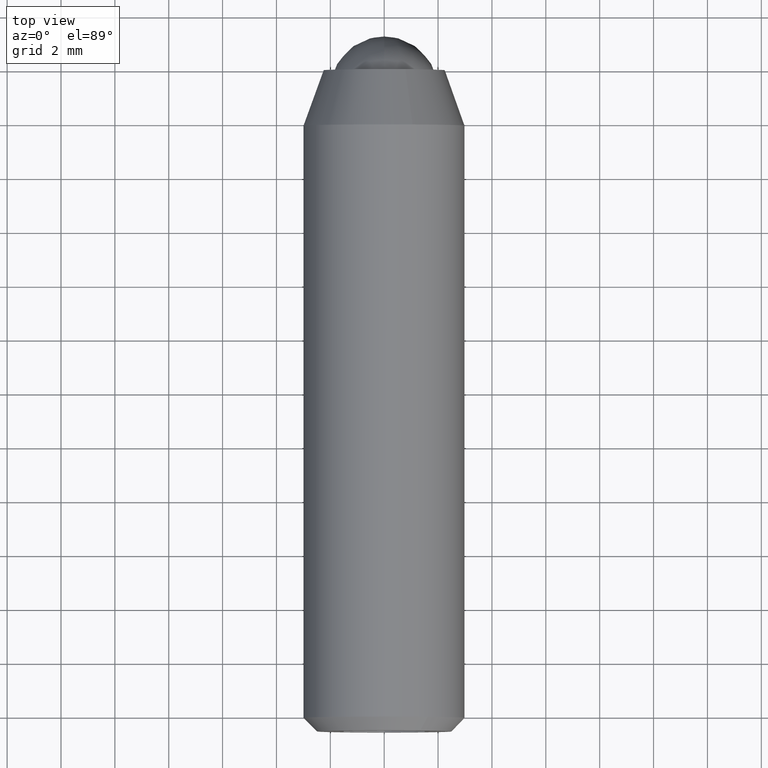
[diagram: clean part render]
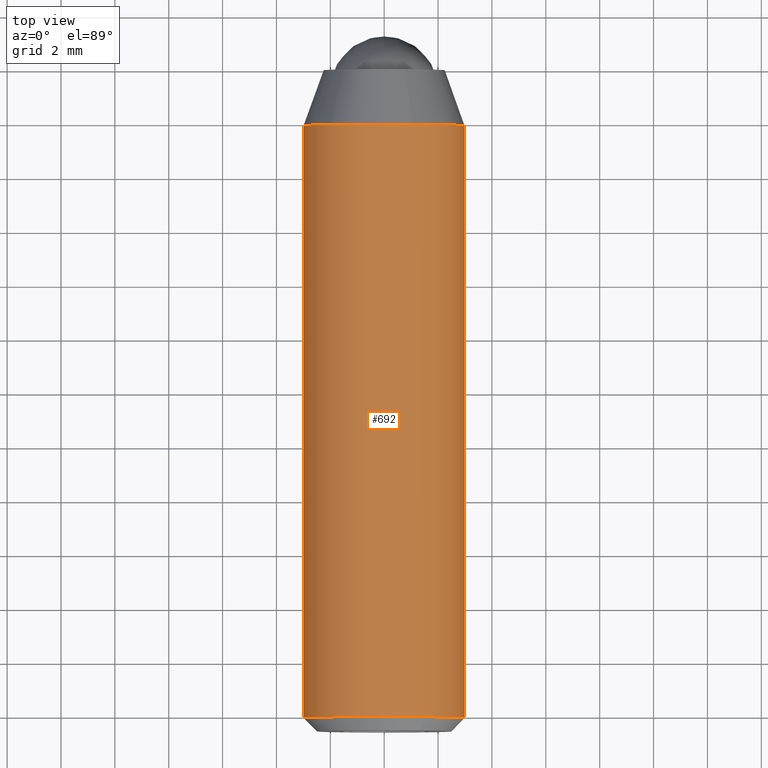
[diagram: same view with one face highlighted and labeled with its STEP entity id]
A machine part, top view. The second image highlights one B-rep face of the part: STEP entity #692.
In plain terms, the highlighted face is a freeform B-spline surface patch.
Its self-contained STEP definition (entity closure, byte-faithful):
#252=CARTESIAN_POINT('',(2.979029056470349,-24.049999999999990,-0.354098687782129));
#253=VERTEX_POINT('',#252);
#254=CARTESIAN_POINT('',(1.613552380351205,-24.049999999999251,2.529120146586055));
#255=VERTEX_POINT('',#254);
#256=CARTESIAN_POINT('',(2.979029056470349,-24.049999999999994,-0.354098687782129));
#257=CARTESIAN_POINT('',(3.000000000000000,-24.050000000000001,-0.177670329632749));
#258=CARTESIAN_POINT('',(3.0,-24.050000000000001,-6.765950E-016));
#259=CARTESIAN_POINT('',(3.0,-24.049999999999997,1.644580968025334));
#260=CARTESIAN_POINT('',(1.613552380351205,-24.049999999999251,2.529120146586055));
#268=(BOUNDED_CURVE()B_SPLINE_CURVE(2,(#256,#257,#258,#259,#260),.UNSPECIFIED.,.F.,.U.)B_SPLINE_CURVE_WITH_KNOTS((3,2,3),(0.229562701358004,0.250000000000000,0.407950112626098),.UNSPECIFIED.)CURVE()GEOMETRIC_REPRESENTATION_ITEM()RATIONAL_B_SPLINE_CURVE((0.956027200768721,0.976056215267575,1.0,0.814949932403979,0.863729296954027))REPRESENTATION_ITEM(''));
#269=EDGE_CURVE('',#253,#255,#268,.T.);
#312=CARTESIAN_POINT('',(-2.990752001202611,-24.049999999991918,0.235377287245564));
#313=VERTEX_POINT('',#312);
#319=CARTESIAN_POINT('',(-2.994404684975035,-24.050000000000011,0.183140881774212));
#320=VERTEX_POINT('',#319);
#321=CARTESIAN_POINT('',(-2.990752001202611,-24.049999999991911,0.235377287245564));
#322=CARTESIAN_POINT('',(-2.992806293846944,-24.050000000000001,0.209275024229323));
#323=CARTESIAN_POINT('',(-2.994404684975035,-24.050000000000011,0.183140881774212));
#331=(BOUNDED_CURVE()B_SPLINE_CURVE(2,(#321,#322,#323),.UNSPECIFIED.,.F.,.U.)B_SPLINE_CURVE_WITH_KNOTS((3,3),(0.736331300625729,0.739333235192756),.UNSPECIFIED.)CURVE()GEOMETRIC_REPRESENTATION_ITEM()RATIONAL_B_SPLINE_CURVE((0.969723356157127,0.972855760371544,0.976072626659396))REPRESENTATION_ITEM(''));
#332=EDGE_CURVE('',#313,#320,#331,.T.);
#385=CARTESIAN_POINT('',(0.0,-24.050000000000001,2.999999999999999));
#386=VERTEX_POINT('',#385);
#387=CARTESIAN_POINT('',(1.613552380351205,-24.049999999999251,2.529120146586055));
#388=CARTESIAN_POINT('',(0.875484166153485,-24.050000000000001,2.999999999999999));
#389=CARTESIAN_POINT('',(0.0,-24.050000000000001,2.999999999999999));
#397=(BOUNDED_CURVE()B_SPLINE_CURVE(2,(#387,#388,#389),.UNSPECIFIED.,.F.,.U.)B_SPLINE_CURVE_WITH_KNOTS((3,3),(0.407950112626098,0.500000000000000),.UNSPECIFIED.)CURVE()GEOMETRIC_REPRESENTATION_ITEM()RATIONAL_B_SPLINE_CURVE((0.863729296954027,0.892156848782568,1.0))REPRESENTATION_ITEM(''));
#398=EDGE_CURVE('',#255,#386,#397,.T.);
#400=CARTESIAN_POINT('',(0.0,-24.050000000000001,2.999999999999999));
#401=CARTESIAN_POINT('',(-2.773171474860424,-24.049999999999997,2.999999999999999));
#402=CARTESIAN_POINT('',(-2.990752001202611,-24.049999999991915,0.235377287245564));
#410=(BOUNDED_CURVE()B_SPLINE_CURVE(2,(#400,#401,#402),.UNSPECIFIED.,.F.,.U.)B_SPLINE_CURVE_WITH_KNOTS((3,3),(0.500000000000000,0.736331300625729),.UNSPECIFIED.)CURVE()GEOMETRIC_REPRESENTATION_ITEM()RATIONAL_B_SPLINE_CURVE((1.0,0.723120658613442,0.969723356157129))REPRESENTATION_ITEM(''));
#411=EDGE_CURVE('',#386,#313,#410,.T.);
#464=CARTESIAN_POINT('',(1.054853923190107,-2.060608000002979,2.808430736325349));
#465=VERTEX_POINT('',#464);
#466=CARTESIAN_POINT('',(0.0,-2.060608000000000,2.999999999999999));
#467=VERTEX_POINT('',#466);
#468=CARTESIAN_POINT('',(1.054853923190107,-2.060608000002980,2.808430736325348));
#469=CARTESIAN_POINT('',(0.544822158216843,-2.060608000000000,2.999999999999999));
#470=CARTESIAN_POINT('',(0.0,-2.060608000000000,2.999999999999999));
#478=(BOUNDED_CURVE()B_SPLINE_CURVE(2,(#468,#469,#470),.UNSPECIFIED.,.F.,.U.)B_SPLINE_CURVE_WITH_KNOTS((3,3),(0.440284170897221,0.500000000000000),.UNSPECIFIED.)CURVE()GEOMETRIC_REPRESENTATION_ITEM()RATIONAL_B_SPLINE_CURVE((0.893499554633700,0.930038554399892,1.0))REPRESENTATION_ITEM(''));
#479=EDGE_CURVE('',#465,#467,#478,.T.);
#518=CARTESIAN_POINT('',(-2.994404537156918,-2.060607996040597,0.183143275066042));
#519=VERTEX_POINT('',#518);
#525=CARTESIAN_POINT('',(0.0,-2.060608000000000,2.999999999999999));
#526=CARTESIAN_POINT('',(-2.822120413462678,-2.060608000000000,3.000000000000000));
#527=CARTESIAN_POINT('',(-2.994404537156918,-2.060607996040598,0.183143275066042));
#535=(BOUNDED_CURVE()B_SPLINE_CURVE(2,(#525,#526,#527),.UNSPECIFIED.,.F.,.U.)B_SPLINE_CURVE_WITH_KNOTS((3,3),(0.500000000000000,0.739333097278809),.UNSPECIFIED.)CURVE()GEOMETRIC_REPRESENTATION_ITEM()RATIONAL_B_SPLINE_CURVE((1.0,0.719603835077665,0.976072331083028))REPRESENTATION_ITEM(''));
#536=EDGE_CURVE('',#467,#519,#535,.T.);
#563=CARTESIAN_POINT('',(2.979029050587920,-2.060608000000000,-0.354098737271509));
#564=VERTEX_POINT('',#563);
#565=CARTESIAN_POINT('',(2.979029050587920,-2.060608000000000,-0.354098737271510));
#566=CARTESIAN_POINT('',(3.000000000000000,-2.060608000000000,-0.177670354639027));
#567=CARTESIAN_POINT('',(3.0,-2.060608000000000,-6.765950E-016));
#568=CARTESIAN_POINT('',(3.000000000000000,-2.060608000000000,2.077828787059541));
#569=CARTESIAN_POINT('',(1.054853923190107,-2.060608000002979,2.808430736325349));
#577=(BOUNDED_CURVE()B_SPLINE_CURVE(2,(#565,#566,#567,#568,#569),.UNSPECIFIED.,.F.,.U.)B_SPLINE_CURVE_WITH_KNOTS((3,2,3),(0.229562698550422,0.250000000000000,0.440284170897222),.UNSPECIFIED.)CURVE()GEOMETRIC_REPRESENTATION_ITEM()RATIONAL_B_SPLINE_CURVE((0.956027195265733,0.976056211978289,1.0,0.777068226786655,0.893499554633700))REPRESENTATION_ITEM(''));
#578=EDGE_CURVE('',#564,#465,#577,.T.);
#647=CARTESIAN_POINT('',(2.973774037346264,-1.510873200000000,-0.398308607658911));
#648=CARTESIAN_POINT('',(2.976408715629047,-1.510873199999999,-0.376143338054579));
#649=CARTESIAN_POINT('',(2.989162846345817,-1.510873199999999,-0.268844185913934));
#650=CARTESIAN_POINT('',(2.994404395265600,-1.510873199999999,-0.183145618604572));
#651=CARTESIAN_POINT('',(3.177550013870171,-1.510873199999999,2.811258776661028));
#652=CARTESIAN_POINT('',(0.183145618604571,-1.510873199999999,2.994404395265599));
#653=CARTESIAN_POINT('',(-2.811258776661029,-1.510873199999999,3.177550013870171));
#654=CARTESIAN_POINT('',(-2.995721540595502,-1.510873199999999,0.161610482819668));
#655=CARTESIAN_POINT('',(-2.997030861844070,-1.510873200000000,0.140203269633786));
#656=CARTESIAN_POINT('',(2.973774037346264,-24.613478170000008,-0.398308607658911));
#657=CARTESIAN_POINT('',(2.976408715629047,-24.613478170000011,-0.376143338054579));
#658=CARTESIAN_POINT('',(2.989162846345817,-24.613478170000008,-0.268844185913934));
#659=CARTESIAN_POINT('',(2.994404395265600,-24.613478170000000,-0.183145618604572));
#660=CARTESIAN_POINT('',(3.177550013870171,-24.613478170000004,2.811258776661028));
#661=CARTESIAN_POINT('',(0.183145618604571,-24.613478170000000,2.994404395265599));
#662=CARTESIAN_POINT('',(-2.811258776661029,-24.613478170000004,3.177550013870171));
#663=CARTESIAN_POINT('',(-2.995721540595502,-24.613478170000008,0.161610482819668));
#664=CARTESIAN_POINT('',(-2.997030861844070,-24.613478170000015,0.140203269633786));
#672=(BOUNDED_SURFACE()B_SPLINE_SURFACE(2,1,((#647,#656),(#648,#657),(#649,#658),(#650,#659),(#651,#660),(#652,#661),(#653,#662),(#654,#663),(#655,#664)),.UNSPECIFIED.,.F.,.F.,.U.)B_SPLINE_SURFACE_WITH_KNOTS((3,1,2,2,1,3),(2,2),(0.0,0.050695169107399,0.249517679046485,5.220080427523625,10.190643176000760,10.241348479740090),(0.0,23.102604970000009),.UNSPECIFIED.)GEOMETRIC_REPRESENTATION_ITEM()RATIONAL_B_SPLINE_SURFACE(((0.972009276458243,0.972009276458243),(0.974757538626685,0.974757538626685),(0.988284271247462,0.988284271247462),(1.0,1.0),(0.707106781186548,0.707106781186548),(1.0,1.0),(0.707106781186548,0.707106781186548),(1.002987838676350,1.002987838676350),(1.005975677352700,1.005975677352700)))REPRESENTATION_ITEM('')SURFACE());
#673=ORIENTED_EDGE('',*,*,#269,.F.);
#674=CARTESIAN_POINT('',(2.979029050587920,-2.060608000000000,-0.354098737271509));
#675=CARTESIAN_POINT('',(2.979029056470349,-24.049999999999990,-0.354098687782129));
#676=QUASI_UNIFORM_CURVE('',1,(#674,#675),.UNSPECIFIED.,.F.,.U.);
#677=EDGE_CURVE('',#564,#253,#676,.T.);
#678=ORIENTED_EDGE('',*,*,#677,.F.);
#679=ORIENTED_EDGE('',*,*,#578,.T.);
#680=ORIENTED_EDGE('',*,*,#479,.T.);
#681=ORIENTED_EDGE('',*,*,#536,.T.);
#682=CARTESIAN_POINT('',(-2.994404537156918,-2.060607996040597,0.183143275066042));
#683=CARTESIAN_POINT('',(-2.994404684975035,-24.050000000000011,0.183140881774212));
#684=QUASI_UNIFORM_CURVE('',1,(#682,#683),.UNSPECIFIED.,.F.,.U.);
#685=EDGE_CURVE('',#519,#320,#684,.T.);
#686=ORIENTED_EDGE('',*,*,#685,.T.);
#687=ORIENTED_EDGE('',*,*,#332,.F.);
#688=ORIENTED_EDGE('',*,*,#411,.F.);
#689=ORIENTED_EDGE('',*,*,#398,.F.);
#690=EDGE_LOOP('',(#673,#678,#679,#680,#681,#686,#687,#688,#689));
#691=FACE_OUTER_BOUND('',#690,.T.);
#692=ADVANCED_FACE('',(#691),#672,.T.);